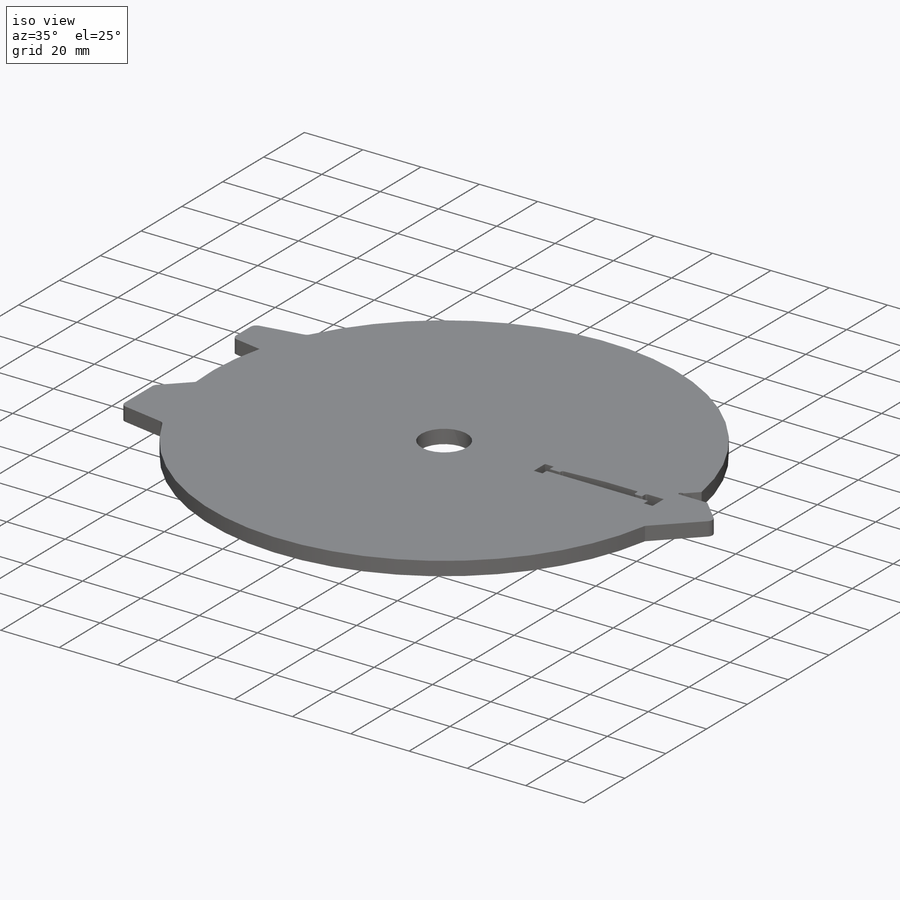
[diagram: iso view]
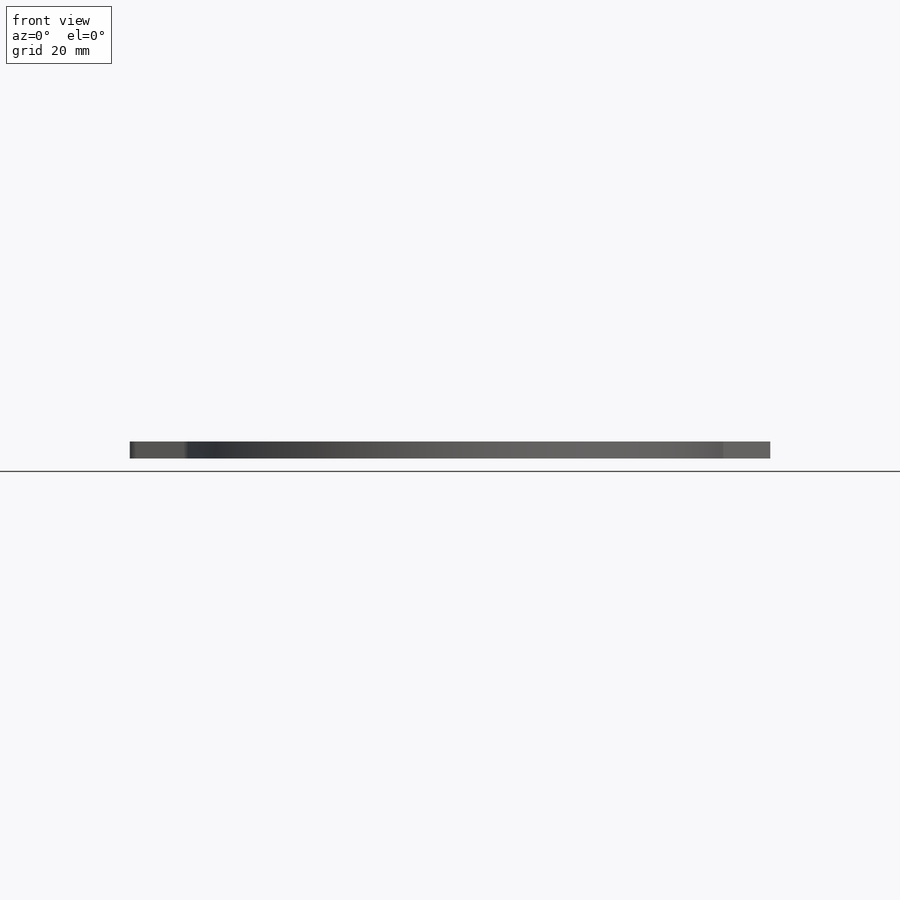
[diagram: front view]
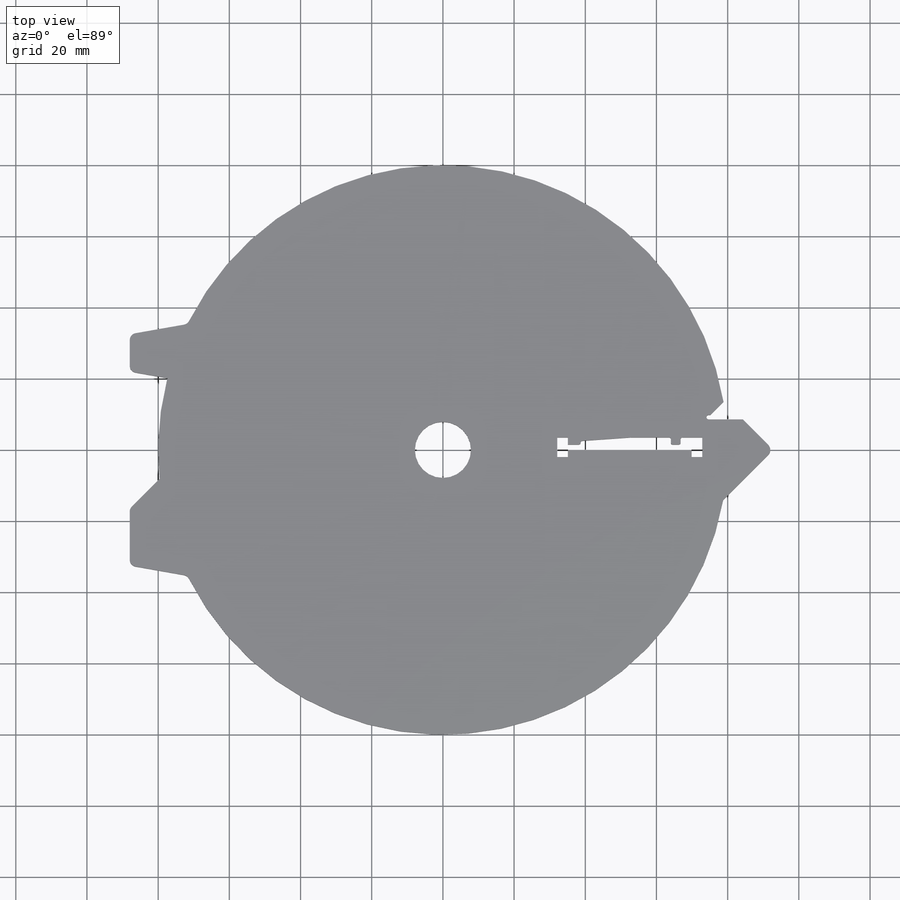
[diagram: top view]
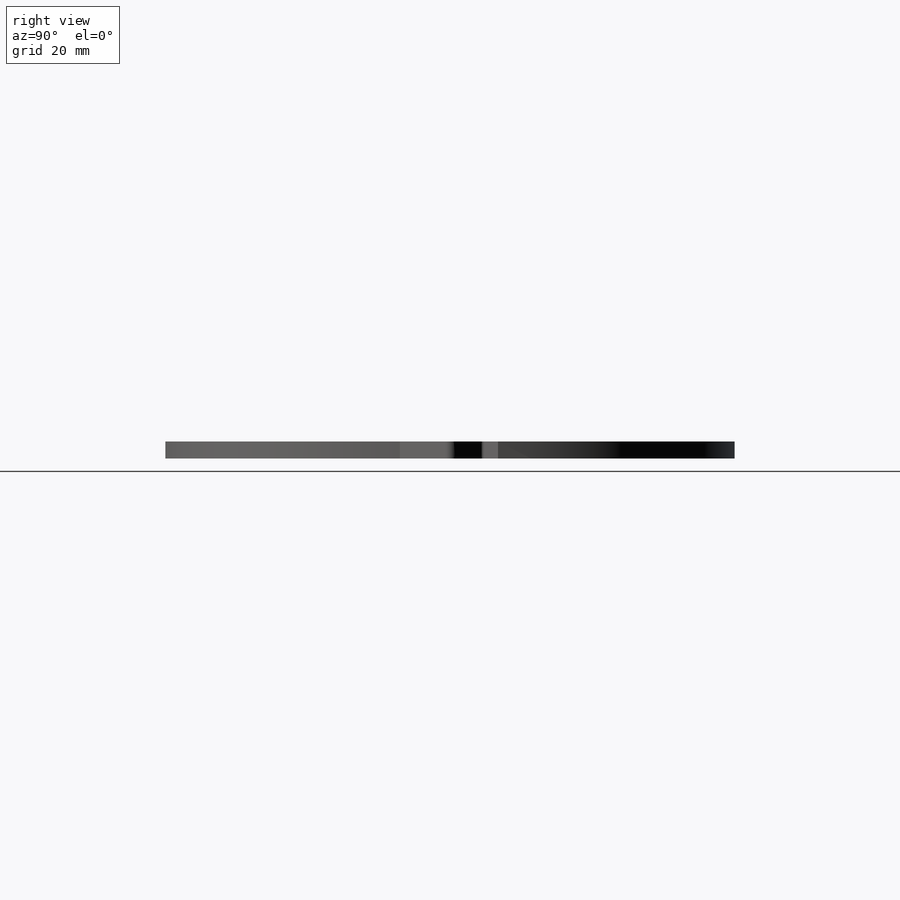
[diagram: right view]
SOLIDWORKS PART (.sldprt)
format: sldprt  version: not decoded by parser v0  size: 382,464 bytes
history: native  units: mm
features: sketch x8, cut_extrude x6, extrude x2, material x1, fillet x1 (+16 scaffold rows collapsed)
feature tree (34):
  scaffold x16  (default folders/planes/origin — collapsed)
  material  "Material <not specified>"
  sketch  "Sketch1"  dims[D1=160.0mm D2=15.75mm D3=12.0mm D4=85.0mm]
  extrude  "Boss-Extrude1"  Depth=4.7625mm
  sketch  "Sketch2"  dims[D1=105.0mm D15=0.5mm D16=0.5mm D2=36.1mm D3=1.0mm D4=5.0mm D5=2.0mm D6=18.5mm D7=3.0mm D8=0.25mm D9=0.25mm D10=0.5mm D11=3.75mm D12=1.5mm D13=6.5mm D14=4.25mm D17=90.0deg D18=1.0mm]
  cut_extrude  "Cut-Extrude1"  [1 undecoded]
  sketch  "Sketch4"  dims[c1.D1=10.0mm c1.D4=5.0mm c2.D1=2.0mm c2.D2=90.0mm c2.D3=~17.226339mm c3.D3=45.0deg c3.D4=7.5mm c3.D5=75.0mm c3.D2=95.0mm c4.D4=10.0mm c4.D1=10.0mm c4.D6=3.0mm c4.D2=65.0mm c4.D3=88.0mm c5.D4=~18.531973mm c6.D4=80.0deg c6.D5=60.0mm c6.D7=88.0mm c7.D7=45.0deg c7.D8=71.5mm c7.D6=90.0mm c7.D9=~11.349311mm c8.D9=90.0deg]
  extrude  "Boss-Extrude2"  [1 undecoded]
  sketch  "Sketch3"  dims[c1.D3=1.25mm c1.D1=~74.770773mm c2.D1=7.0deg c2.D2=75.5mm c2.D4=0.25mm c2.D5=0.25mm c2.D6=1.0mm c3.D6=45.0deg c3.D5=0.25mm c4.D6=~14.073152mm c5.D6=45.0deg]
  cut_extrude  "Cut-Extrude2"  [1 undecoded]
  sketch  "Sketch5"  dims[D1=3.0mm D2=18.0mm D3=11.0mm D4=5.0mm]
  cut_extrude  "Cut-Extrude3"  [1 undecoded]
  sketch  "Sketch6"  dims[D1=2.0mm D2=40.75mm D3=5.5mm]
  cut_extrude  "Cut-Extrude4"  [1 undecoded]
  sketch  "Sketch7"  dims[c1.D1=~10.417066mm c2.D1=10.0deg c2.D2=22.0mm]
  cut_extrude  "Cut-Extrude5"  [1 undecoded]
  fillet  "Fillet1"  Radius=2mm
  sketch  "Sketch8"  dims[D1=3.0mm D2=5.5mm D3=2.0mm D4=40.75mm]
  cut_extrude  "Cut-Extrude6"  [1 undecoded]
decode coverage: 10 of 17 modeling features carry decoded parameters
note: ~ marks probable driven/reference dimensions
note: 7 parameter values undecoded
summary: no parameter record found for 7 features
note: suppression state not decoded; provenance and decode notes live in map.json
